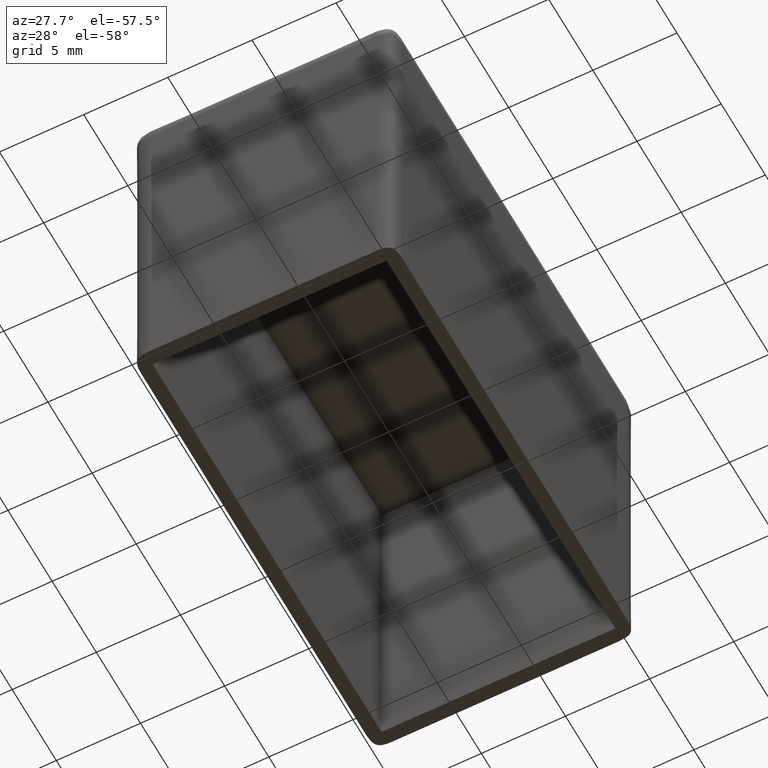
[diagram: clean part render]
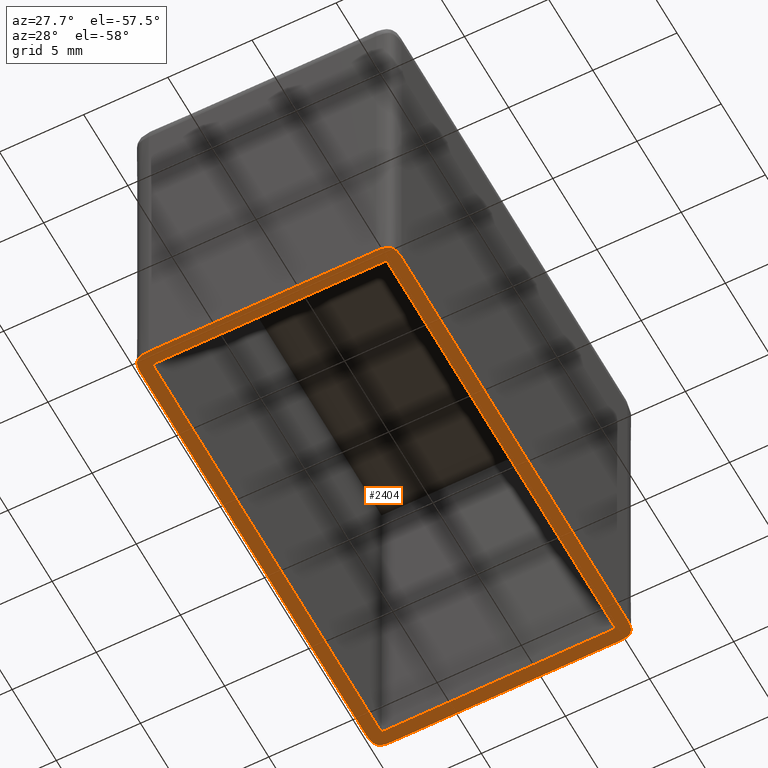
[diagram: same view with one face highlighted and labeled with its STEP entity id]
A machine part, auxiliary view. The second image highlights one B-rep face of the part: STEP entity #2404.
In plain terms, the highlighted planar face has unit normal (0, 0, 1).
Its self-contained STEP definition (entity closure, byte-faithful):
#5 = CARTESIAN_POINT ( 'NONE',  ( 0.0000000000000000000, 0.0000000000000000000, -22.00000000000000000 ) ) ;
#7 = CARTESIAN_POINT ( 'NONE',  ( 0.9978666655837860100, 0.8000000000000000400, -22.00000000000000000 ) ) ;
#10 = VERTEX_POINT ( 'NONE', #218 ) ;
#12 = CARTESIAN_POINT ( 'NONE',  ( 14.92796773473571800, 0.03392328364386529300, -22.00000000000000000 ) ) ;
#14 = CARTESIAN_POINT ( 'NONE',  ( 14.49999999999999800, 27.49999999999999600, -22.00000000000000000 ) ) ;
#34 = CARTESIAN_POINT ( 'NONE',  ( 14.68321624838080600, 0.8068364525453568500, -22.00000000000000400 ) ) ;
#37 = VECTOR ( 'NONE', #618, 1000.000000000000000 ) ;
#46 = CARTESIAN_POINT ( 'NONE',  ( 14.58261939557887000, 27.49999999999999600, -22.00000000000000000 ) ) ;
#53 = EDGE_CURVE ( 'NONE', #734, #641, #395, .T. ) ;
#58 = CARTESIAN_POINT ( 'NONE',  ( 14.53199972902769900, 26.69983370027172500, -22.00000000000000400 ) ) ;
#79 = CARTESIAN_POINT ( 'NONE',  ( 0.8200998324182342500, 26.69344524766039200, -22.00000000000000400 ) ) ;
#89 = CARTESIAN_POINT ( 'NONE',  ( 14.92195990358890600, 0.03275341870660460800, -21.99999999999999600 ) ) ;
#90 = CARTESIAN_POINT ( 'NONE',  ( 15.47690747893944700, 0.6338777684587885200, -22.00000000000000700 ) ) ;
#98 = CARTESIAN_POINT ( 'NONE',  ( 0.9532962902844740500, 26.70000000000000300, -22.00000000000000000 ) ) ;
#99 = CARTESIAN_POINT ( 'NONE',  ( 15.09044807097110300, 0.07888791023231928000, -22.00000000000000400 ) ) ;
#106 = CARTESIAN_POINT ( 'NONE',  ( 15.04389050095700300, 0.06210524771872363200, -21.99999999999999600 ) ) ;
#111 = CARTESIAN_POINT ( 'NONE',  ( 0.3228816495558670700, 27.38037113580408600, -22.00000000000000000 ) ) ;
#117 = ORIENTED_EDGE ( 'NONE', *, *, #1258, .T. ) ;
#128 = CARTESIAN_POINT ( 'NONE',  ( 15.42113883093678700, 0.4115075020712722900, -22.00000000000000400 ) ) ;
#132 = CARTESIAN_POINT ( 'NONE',  ( 14.69999999999999900, 0.0000000000000000000, -22.00000000000000000 ) ) ;
#144 = CARTESIAN_POINT ( 'NONE',  ( 0.03088814680305572800, 26.91208960525878200, -21.99999999999999600 ) ) ;
#152 = CARTESIAN_POINT ( 'NONE',  ( 0.0000000000000000000, 1.000000000000000000, -22.00000000000000000 ) ) ;
#154 = EDGE_CURVE ( 'NONE', #1839, #1776, #1375, .T. ) ;
#155 = CARTESIAN_POINT ( 'NONE',  ( 0.07018473020474483300, 27.06542827164653500, -22.00000000000000700 ) ) ;
#164 = CARTESIAN_POINT ( 'NONE',  ( 0.8000758437605984800, 26.52346679910117900, -22.00000000000000400 ) ) ;
#165 = CARTESIAN_POINT ( 'NONE',  ( 0.5626215147192922300, 27.46417721376826300, -22.00000000000000400 ) ) ;
#169 = B_SPLINE_CURVE_WITH_KNOTS ( 'NONE', 3,
 ( #1497, #370, #2889, #2109, #2099, #2330, #79, #329, #2085, #583, #2583, #98, #3119 ),
 .UNSPECIFIED., .F., .F.,
 ( 4, 3, 3, 3, 4 ),
 ( 0.0000000000000000000, 2.496001232767899500E-006, 1.248007464211747100E-005, 5.242302430365668500E-005, 0.0001926087091526860200 ),
 .UNSPECIFIED. ) ;
#191 = CARTESIAN_POINT ( 'NONE',  ( 0.5879103947412422900, 0.03088814680305683100, -21.99999999999999600 ) ) ;
#203 = CARTESIAN_POINT ( 'NONE',  ( 0.3132717579864004500, 0.1206740327154293700, -22.00000000000000000 ) ) ;
#207 = CARTESIAN_POINT ( 'NONE',  ( 0.8000000000000009300, 26.50213333441621400, -22.00000000000000000 ) ) ;
#210 = B_SPLINE_CURVE_WITH_KNOTS ( 'NONE', 3,
 ( #2453, #1261, #1982, #2001, #2716, #737, #2468, #2738, #1217, #466, #1501, #2479, #1762 ),
 .UNSPECIFIED., .F., .F.,
 ( 4, 3, 3, 3, 4 ),
 ( 0.0000000000000000000, 2.496001232752912500E-006, 1.248007464209986000E-005, 5.242302430364379700E-005, 0.0001926087091526914900 ),
 .UNSPECIFIED. ) ;
#211 = CARTESIAN_POINT ( 'NONE',  ( 0.1196288641961170000, 0.3228816495553220000, -22.00000000000000000 ) ) ;
#218 = CARTESIAN_POINT ( 'NONE',  ( 15.50000000000000000, 1.000000000000000000, -22.00000000000000000 ) ) ;
#226 = CARTESIAN_POINT ( 'NONE',  ( 0.8044614573706798700, 26.65371376655579600, -22.00000000000000400 ) ) ;
#231 = VERTEX_POINT ( 'NONE', #1037 ) ;
#234 = CARTESIAN_POINT ( 'NONE',  ( 0.03392328364385362900, 0.5720322652643055100, -22.00000000000000400 ) ) ;
#259 = CARTESIAN_POINT ( 'NONE',  ( 14.90978191810938500, 27.46953070137842400, -22.00000000000000400 ) ) ;
#284 = CARTESIAN_POINT ( 'NONE',  ( 0.9680002709722899100, 0.8001662997282817900, -21.99999999999998900 ) ) ;
#285 = CARTESIAN_POINT ( 'NONE',  ( 14.81252021576082500, 27.48443944817423900, -22.00000000000000000 ) ) ;
#292 = CARTESIAN_POINT ( 'NONE',  ( 15.50000000000000000, 26.50000000000000000, -22.00000000000000000 ) ) ;
#297 = CARTESIAN_POINT ( 'NONE',  ( 15.39287949657317300, 27.15276182586277200, -22.00000000000000000 ) ) ;
#307 = CARTESIAN_POINT ( 'NONE',  ( 15.42111208976810500, 27.09044807097000900, -21.99999999999999600 ) ) ;
#329 = CARTESIAN_POINT ( 'NONE',  ( 0.8333652586811877100, 26.69457214218863000, -22.00000000000000400 ) ) ;
#337 = CARTESIAN_POINT ( 'NONE',  ( 14.49999999999999800, 26.69999999999999900, -22.00000000000000000 ) ) ;
#338 = CARTESIAN_POINT ( 'NONE',  ( 14.80594846349609000, 0.01069499386338116200, -22.00000000000000400 ) ) ;
#339 = CARTESIAN_POINT ( 'NONE',  ( 15.47270695763541500, 0.6081550272228167800, -22.00000000000000000 ) ) ;
#350 = CARTESIAN_POINT ( 'NONE',  ( 14.69233031693694400, 0.8076696830621207200, -22.00000000000000000 ) ) ;
#353 = ORIENTED_EDGE ( 'NONE', *, *, #941, .F. ) ;
#370 = CARTESIAN_POINT ( 'NONE',  ( 0.8084979862949431800, 26.69240866513404600, -22.00000000000000000 ) ) ;
#395 = LINE ( 'NONE', #1924, #754 ) ;
#411 = DIRECTION ( 'NONE',  ( -1.000000000000000000, -0.0000000000000000000, 0.0000000000000000000 ) ) ;
#413 = CARTESIAN_POINT ( 'NONE',  ( 0.01556055182575118500, 26.81252021576027300, -22.00000000000000000 ) ) ;
#432 = CARTESIAN_POINT ( 'NONE',  ( 14.50000000000000000, 0.0000000000000000000, -22.00000000000000000 ) ) ;
#451 = CARTESIAN_POINT ( 'NONE',  ( 0.4115075020711437800, 0.07886116906323573100, -21.99999999999999300 ) ) ;
#453 = EDGE_CURVE ( 'NONE', #1839, #561, #705, .T. ) ;
#466 = CARTESIAN_POINT ( 'NONE',  ( 0.8037097831999540100, 0.8599379922343322000, -22.00000000000000400 ) ) ;
#501 = CARTESIAN_POINT ( 'NONE',  ( 15.31610458665546500, 27.26978804501091600, -21.99999999999999600 ) ) ;
#502 = CARTESIAN_POINT ( 'NONE',  ( 0.8033834997290828500, 26.63437137765168600, -22.00000000000000400 ) ) ;
#507 = CARTESIAN_POINT ( 'NONE',  ( 0.04595270468731096900, 0.5167310761294881000, -22.00000000000000400 ) ) ;
#508 = CARTESIAN_POINT ( 'NONE',  ( 0.9936000000000007000, 0.8000064484616606900, -22.00000000000000000 ) ) ;
#509 = CARTESIAN_POINT ( 'NONE',  ( 14.95492298412082600, 27.46105588128689900, -22.00000000000000400 ) ) ;
#510 = DIRECTION ( 'NONE',  ( -1.000000000000000000, 0.0000000000000000000, 0.0000000000000000000 ) ) ;
#521 = CARTESIAN_POINT ( 'NONE',  ( 14.69669005096009900, 27.49602709315086800, -22.00000000000000400 ) ) ;
#531 = CARTESIAN_POINT ( 'NONE',  ( 0.03275341870660548900, 0.5780400964110785600, -22.00000000000000000 ) ) ;
#533 = CARTESIAN_POINT ( 'NONE',  ( 14.90263794759535000, 27.47081361921513200, -22.00000000000000400 ) ) ;
#548 = CARTESIAN_POINT ( 'NONE',  ( 14.69999999999999900, 26.54670370971552600, -22.00000000000000000 ) ) ;
#555 = ORIENTED_EDGE ( 'NONE', *, *, #2275, .F. ) ;
#557 = VERTEX_POINT ( 'NONE', #1597 ) ;
#559 = CARTESIAN_POINT ( 'NONE',  ( 14.69344524766039200, 26.67990016758177100, -21.99999999999999600 ) ) ;
#561 = VERTEX_POINT ( 'NONE', #2250 ) ;
#565 = CARTESIAN_POINT ( 'NONE',  ( 15.50000000000000200, 26.66646699502459600, -22.00000000000000000 ) ) ;
#570 = CARTESIAN_POINT ( 'NONE',  ( 14.69248618510875400, 26.69067363173007100, -21.99999999999999600 ) ) ;
#582 = CARTESIAN_POINT ( 'NONE',  ( 14.50426666994823100, 26.69999786681569300, -22.00000000000000000 ) ) ;
#583 = CARTESIAN_POINT ( 'NONE',  ( 0.8599379922343587400, 26.69629021680003700, -22.00000000000000000 ) ) ;
#584 = CARTESIAN_POINT ( 'NONE',  ( 15.50000000000000000, 1.000000000000000000, -22.00000000000000000 ) ) ;
#588 = CARTESIAN_POINT ( 'NONE',  ( 14.69992415623940300, 0.9765332008988165700, -22.00000000000000400 ) ) ;
#593 = CARTESIAN_POINT ( 'NONE',  ( 14.51493339190839800, 26.69997629028389200, -22.00000000000000000 ) ) ;
#596 = DIRECTION ( 'NONE',  ( 0.0000000000000000000, 0.0000000000000000000, 1.000000000000000000 ) ) ;
#598 = ORIENTED_EDGE ( 'NONE', *, *, #1487, .T. ) ;
#605 = CARTESIAN_POINT ( 'NONE',  ( 15.47081361921513200, 0.5973620524048506300, -22.00000000000000400 ) ) ;
#618 = DIRECTION ( 'NONE',  ( -1.000000000000000000, -0.0000000000000000000, -0.0000000000000000000 ) ) ;
#625 = CARTESIAN_POINT ( 'NONE',  ( 0.1595663668651665400, 27.24513874641767300, -22.00000000000000000 ) ) ;
#636 = CARTESIAN_POINT ( 'NONE',  ( 0.08481498937501544300, 27.10358704059751000, -21.99999999999999600 ) ) ;
#637 = CARTESIAN_POINT ( 'NONE',  ( 14.69851622640757300, 0.8997164569056708100, -22.00000000000000400 ) ) ;
#641 = VERTEX_POINT ( 'NONE', #1772 ) ;
#652 = EDGE_CURVE ( 'NONE', #557, #3250, #210, .T. ) ;
#674 = VECTOR ( 'NONE', #3154, 1000.000000000000000 ) ;
#686 = B_SPLINE_CURVE_WITH_KNOTS ( 'NONE', 3,
 ( #2528, #7, #2765, #508, #1012, #1288, #284, #796, #2264, #1267, #2539, #2742, #3002 ),
 .UNSPECIFIED., .F., .F.,
 ( 4, 3, 3, 3, 4 ),
 ( 0.0000000000000000000, 6.400003248644470600E-006, 3.200023134762170200E-005, 0.0001344436423021510100, 0.0001925653611397155800 ),
 .UNSPECIFIED. ) ;
#705 = B_SPLINE_CURVE_WITH_KNOTS ( 'NONE', 3,
 ( #1128, #2342, #1091, #3104, #1079, #588, #1882, #1115, #637, #2366, #3140, #1584, #350 ),
 .UNSPECIFIED., .F., .F.,
 ( 4, 3, 3, 3, 4 ),
 ( 0.0000000000000000000, 6.400003248652057500E-006, 3.200023134763015900E-005, 0.0001344436423021596300, 0.0001925653611397135500 ),
 .UNSPECIFIED. ) ;
#709 = FACE_BOUND ( 'NONE', #1336, .T. ) ;
#714 = CARTESIAN_POINT ( 'NONE',  ( 14.50000000000000000, 0.8000000000000000400, -22.00000000000000000 ) ) ;
#719 = CARTESIAN_POINT ( 'NONE',  ( 0.5973620524048703900, 0.02918638078487041700, -22.00000000000000700 ) ) ;
#734 = VERTEX_POINT ( 'NONE', #714 ) ;
#737 = CARTESIAN_POINT ( 'NONE',  ( 0.8068364525453575200, 0.8167837516191953600, -21.99999999999999300 ) ) ;
#751 = CARTESIAN_POINT ( 'NONE',  ( 3.896351557369774800E-017, 0.8335330049725175900, -22.00000000000000400 ) ) ;
#754 = VECTOR ( 'NONE', #411, 1000.000000000000000 ) ;
#756 = CARTESIAN_POINT ( 'NONE',  ( 15.10358704059814300, 27.41518501062484600, -21.99999999999999300 ) ) ;
#774 = CARTESIAN_POINT ( 'NONE',  ( 0.06210524771863992800, 0.4561094990431390800, -22.00000000000000000 ) ) ;
#775 = CARTESIAN_POINT ( 'NONE',  ( 14.69067363173008400, 0.8075138148912469600, -21.99999999999999600 ) ) ;
#796 = CARTESIAN_POINT ( 'NONE',  ( 0.9338614594334964100, 0.8005281987781881500, -21.99999999999998900 ) ) ;
#811 = CARTESIAN_POINT ( 'NONE',  ( 14.69629021680004400, 26.64006200776562800, -21.99999999999998900 ) ) ;
#816 = CARTESIAN_POINT ( 'NONE',  ( 15.48930500613661600, 26.80594846349268000, -21.99999999999999600 ) ) ;
#837 = CARTESIAN_POINT ( 'NONE',  ( 14.69233031693787900, 26.69233031693693500, -21.99999999999999600 ) ) ;
#839 = CARTESIAN_POINT ( 'NONE',  ( 15.49999999999999500, 0.9173806044219662300, -22.00000000000000000 ) ) ;
#847 = CARTESIAN_POINT ( 'NONE',  ( 15.23034517245537600, 0.1516328620193898300, -22.00000000000000000 ) ) ;
#884 = CARTESIAN_POINT ( 'NONE',  ( 0.4095519290277777600, 27.42111208976723400, -22.00000000000000400 ) ) ;
#896 = CARTESIAN_POINT ( 'NONE',  ( -1.750246651214226700E-019, 26.58261939557845100, -22.00000000000000000 ) ) ;
#901 = B_SPLINE_CURVE_WITH_KNOTS ( 'NONE', 3,
 ( #584, #839, #2584, #2862, #90, #339, #605, #1637, #2877, #1374, #2100, #2634, #128, #1134, #3120, #1855, #1388, #1088, #847, #1612, #2596, #1600, #1901, #99, #106, #1866, #1875, #975, #12, #89, #338, #1682, #432 ),
 .UNSPECIFIED., .F., .F.,
 ( 4, 1, 1, 1, 1, 2, 2, 1, 1, 2, 2, 2, 1, 1, 2, 2, 1, 1, 1, 2, 2, 4 ),
 ( 0.0000000000000000000, 0.1249999999999922600, 0.1874999999999883100, 0.2187499999999862300, 0.2343749999999851800, 0.2421874999999846500, 0.2499999999999841500, 0.3124999999999765200, 0.3437499999999726300, 0.3593749999999702500, 0.3749999999999678600, 0.4999999999999460400, 0.5624999999999339400, 0.5937499999999279500, 0.6093749999999249500, 0.6249999999999219500, 0.6874999999999194000, 0.7187499999999197300, 0.7343749999999198400, 0.7421874999999199500, 0.7499999999999200600, 1.000000000000000000 ),
 .UNSPECIFIED. ) ;
#904 = LINE ( 'NONE', #3006, #2823 ) ;
#907 = CARTESIAN_POINT ( 'NONE',  ( 0.08731673486847657500, 27.10970053710921600, -21.99999999999999600 ) ) ;
#919 = CARTESIAN_POINT ( 'NONE',  ( 0.4561094990410309300, 27.43789475228047400, -22.00000000000000400 ) ) ;
#920 = EDGE_CURVE ( 'NONE', #3158, #2282, #2669, .T. ) ;
#941 = EDGE_CURVE ( 'NONE', #10, #2273, #1972, .T. ) ;
#971 = CARTESIAN_POINT ( 'NONE',  ( 0.8000064484616614700, 26.50639999999999900, -22.00000000000000000 ) ) ;
#975 = CARTESIAN_POINT ( 'NONE',  ( 14.93737848528019900, 0.03582278623153691700, -22.00000000000000700 ) ) ;
#993 = CARTESIAN_POINT ( 'NONE',  ( 14.69233031693787900, 26.69233031693693500, -21.99999999999999600 ) ) ;
#998 = CARTESIAN_POINT ( 'NONE',  ( 0.09904996031321473800, 0.3638191970670486800, -22.00000000000000700 ) ) ;
#1004 = CARTESIAN_POINT ( 'NONE',  ( 15.40095003968670200, 27.13618080293320700, -22.00000000000000000 ) ) ;
#1008 = ORIENTED_EDGE ( 'NONE', *, *, #2379, .T. ) ;
#1012 = CARTESIAN_POINT ( 'NONE',  ( 0.9850666080915980700, 0.8000237097161091400, -22.00000000000000000 ) ) ;
#1013 = CARTESIAN_POINT ( 'NONE',  ( 14.54670370971553900, 0.8000000000000000400, -22.00000000000000000 ) ) ;
#1021 = VERTEX_POINT ( 'NONE', #2462 ) ;
#1037 = CARTESIAN_POINT ( 'NONE',  ( 0.8076696830630657500, 26.69233031693788000, -22.00000000000000000 ) ) ;
#1039 = EDGE_LOOP ( 'NONE', ( #1008, #1611, #117, #1917, #2489, #598, #353, #2396 ) ) ;
#1040 = CARTESIAN_POINT ( 'NONE',  ( 0.1071205034266845300, 0.3472381741376975900, -22.00000000000000400 ) ) ;
#1045 = CARTESIAN_POINT ( 'NONE',  ( 15.34836713798030600, 27.23034517245629300, -22.00000000000000000 ) ) ;
#1063 = CARTESIAN_POINT ( 'NONE',  ( 15.50000000000000000, 26.50000000000000000, -22.00000000000000000 ) ) ;
#1079 = CARTESIAN_POINT ( 'NONE',  ( 14.69997629028389200, 0.9850666080915871900, -22.00000000000000400 ) ) ;
#1088 = CARTESIAN_POINT ( 'NONE',  ( 15.26978804501038700, 0.1838954133443707600, -22.00000000000000000 ) ) ;
#1091 = CARTESIAN_POINT ( 'NONE',  ( 14.69999786681569300, 0.9957333300517634500, -22.00000000000000400 ) ) ;
#1097 = B_SPLINE_CURVE_WITH_KNOTS ( 'NONE', 3,
 ( #14, #46, #521, #285, #1289, #1777, #533, #259, #2265, #509, #3054, #2507, #1537, #756, #2529, #3042, #2289, #501, #1045, #1812, #297, #1004, #2564, #307, #1314, #3066, #2066, #2308, #1824, #2554, #816, #565, #1063 ),
 .UNSPECIFIED., .F., .F.,
 ( 4, 1, 1, 1, 1, 2, 2, 1, 1, 2, 2, 2, 1, 1, 2, 2, 1, 1, 1, 2, 2, 4 ),
 ( 0.0000000000000000000, 0.1249999999999733500, 0.1874999999999600300, 0.2187499999999516800, 0.2343749999999462700, 0.2421874999999435700, 0.2499999999999408800, 0.3124999999999343900, 0.3437499999999320500, 0.3593749999999282200, 0.3749999999999243900, 0.4999999999999260600, 0.5624999999999302800, 0.5937499999999323900, 0.6093749999999368300, 0.6249999999999412700, 0.6874999999999744600, 0.7187499999999940000, 0.7343750000000034400, 0.7421875000000078800, 0.7500000000000123200, 1.000000000000000000 ),
 .UNSPECIFIED. ) ;
#1114 = CARTESIAN_POINT ( 'NONE',  ( 0.0000000000000000000, 26.49999999999999600, -22.00000000000000000 ) ) ;
#1115 = CARTESIAN_POINT ( 'NONE',  ( 14.69947180122181200, 0.9338614594334848600, -22.00000000000000400 ) ) ;
#1128 = CARTESIAN_POINT ( 'NONE',  ( 14.69999999999999900, 1.000000000000000000, -22.00000000000000000 ) ) ;
#1134 = CARTESIAN_POINT ( 'NONE',  ( 15.41518501062500900, 0.3964129594024467000, -22.00000000000000400 ) ) ;
#1139 = VECTOR ( 'NONE', #2211, 1000.000000000000000 ) ;
#1164 = ORIENTED_EDGE ( 'NONE', *, *, #1604, .F. ) ;
#1173 = CARTESIAN_POINT ( 'NONE',  ( 0.5780400964112157900, 27.46724658129339900, -22.00000000000000000 ) ) ;
#1183 = CARTESIAN_POINT ( 'NONE',  ( 1.000000000000000900, 27.49999999999999600, -22.00000000000000000 ) ) ;
#1184 = VERTEX_POINT ( 'NONE', #1630 ) ;
#1208 = B_SPLINE_CURVE_WITH_KNOTS ( 'NONE', 3,
 ( #3247, #2970, #3217, #2739, #1706, #2959, #719, #2979, #191, #1463, #1741, #1715, #451, #2711, #1963, #203, #1973, #3236, #1726, #211, #1040, #998, #2784, #2527, #774, #507, #2754, #2274, #234, #531, #2003, #751, #2026 ),
 .UNSPECIFIED., .F., .F.,
 ( 4, 1, 1, 1, 1, 2, 2, 1, 1, 2, 2, 2, 1, 1, 2, 2, 1, 1, 1, 2, 2, 4 ),
 ( 0.0000000000000000000, 0.1249999999999967200, 0.1874999999999950900, 0.2187499999999943700, 0.2343749999999941400, 0.2421874999999941200, 0.2499999999999941200, 0.3124999999999943400, 0.3437499999999945000, 0.3593749999999945600, 0.3749999999999946700, 0.4999999999999956700, 0.5624999999999961100, 0.5937499999999964500, 0.6093749999999965600, 0.6249999999999966700, 0.6874999999999971100, 0.7187499999999973400, 0.7343749999999975600, 0.7421874999999976700, 0.7499999999999976700, 1.000000000000000000 ),
 .UNSPECIFIED. ) ;
#1215 = CARTESIAN_POINT ( 'NONE',  ( 0.8000000000000000400, 26.49999999999999600, -22.00000000000000000 ) ) ;
#1217 = CARTESIAN_POINT ( 'NONE',  ( 0.8044933777376707100, 0.8466478679002212800, -22.00000000000000400 ) ) ;
#1235 = EDGE_CURVE ( 'NONE', #1021, #2282, #1541, .T. ) ;
#1258 = EDGE_CURVE ( 'NONE', #2526, #1021, #1259, .T. ) ;
#1259 = LINE ( 'NONE', #5, #2544 ) ;
#1261 = CARTESIAN_POINT ( 'NONE',  ( 0.8075913348659472500, 0.8084979862949245300, -22.00000000000000000 ) ) ;
#1265 = ORIENTED_EDGE ( 'NONE', *, *, #2918, .F. ) ;
#1267 = CARTESIAN_POINT ( 'NONE',  ( 0.8656286223483320400, 0.8033834997290810700, -22.00000000000000700 ) ) ;
#1276 = CARTESIAN_POINT ( 'NONE',  ( 14.65335213209978000, 0.8044933777376698200, -22.00000000000000000 ) ) ;
#1288 = CARTESIAN_POINT ( 'NONE',  ( 0.9765332008988277800, 0.8000758437605974800, -21.99999999999998900 ) ) ;
#1289 = CARTESIAN_POINT ( 'NONE',  ( 14.86612223154184800, 27.47690747893943800, -22.00000000000000000 ) ) ;
#1297 = CARTESIAN_POINT ( 'NONE',  ( 14.67304399944121100, 26.69415458627369700, -21.99999999999998600 ) ) ;
#1313 = CARTESIAN_POINT ( 'NONE',  ( 14.50640000000000100, 26.69999355153833800, -22.00000000000000000 ) ) ;
#1314 = CARTESIAN_POINT ( 'NONE',  ( 15.43789475228202300, 27.04389050095510400, -22.00000000000000000 ) ) ;
#1318 = CARTESIAN_POINT ( 'NONE',  ( 14.69286972038574200, 26.68653132467972000, -21.99999999999999600 ) ) ;
#1336 = EDGE_LOOP ( 'NONE', ( #1531, #1551, #2913, #1616, #555, #1265, #2954, #2050, #1164, #3163, #2511, #3001 ) ) ;
#1340 = CARTESIAN_POINT ( 'NONE',  ( 14.50213333441621800, 26.69999999999999900, -22.00000000000000000 ) ) ;
#1368 = CARTESIAN_POINT ( 'NONE',  ( 0.1206740327153148400, 27.18672824201399200, -22.00000000000000000 ) ) ;
#1374 = CARTESIAN_POINT ( 'NONE',  ( 15.46105588128725800, 0.5450770158804376700, -22.00000000000000400 ) ) ;
#1375 = LINE ( 'NONE', #132, #674 ) ;
#1388 = CARTESIAN_POINT ( 'NONE',  ( 15.34043363313395100, 0.2548612535819922400, -22.00000000000000000 ) ) ;
#1402 = CARTESIAN_POINT ( 'NONE',  ( 0.003972906849128501000, 26.69669005095935800, -22.00000000000000000 ) ) ;
#1436 = CARTESIAN_POINT ( 'NONE',  ( 0.5167310761279088100, 27.45404729531202300, -22.00000000000000000 ) ) ;
#1463 = CARTESIAN_POINT ( 'NONE',  ( 0.5450770158802871200, 0.03894411871276509000, -22.00000000000000000 ) ) ;
#1465 = EDGE_CURVE ( 'NONE', #561, #734, #2751, .T. ) ;
#1487 = EDGE_CURVE ( 'NONE', #3158, #2273, #1097, .T. ) ;
#1494 = CARTESIAN_POINT ( 'NONE',  ( 14.50000000000000000, 0.0000000000000000000, -22.00000000000000000 ) ) ;
#1497 = CARTESIAN_POINT ( 'NONE',  ( 0.8076696830630657500, 26.69233031693788000, -22.00000000000000000 ) ) ;
#1501 = CARTESIAN_POINT ( 'NONE',  ( 0.8009608754766202000, 0.9065607335471508300, -22.00000000000000400 ) ) ;
#1507 = CARTESIAN_POINT ( 'NONE',  ( 14.68984517486579300, 0.8074371082567424200, -21.99999999999999600 ) ) ;
#1531 = ORIENTED_EDGE ( 'NONE', *, *, #53, .F. ) ;
#1537 = CARTESIAN_POINT ( 'NONE',  ( 15.08849249792979700, 27.42113883093648100, -22.00000000000000000 ) ) ;
#1541 = B_SPLINE_CURVE_WITH_KNOTS ( 'NONE', 3,
 ( #1114, #896, #1402, #413, #1651, #3138, #1664, #3126, #144, #1916, #2159, #155, #2611, #636, #907, #1368, #625, #1618, #2881, #111, #1881, #1892, #2376, #884, #919, #1436, #2672, #165, #1937, #1173, #2930, #3202, #1183 ),
 .UNSPECIFIED., .F., .F.,
 ( 4, 1, 1, 1, 1, 2, 2, 1, 1, 2, 2, 2, 1, 1, 2, 2, 1, 1, 1, 2, 2, 4 ),
 ( 0.0000000000000000000, 0.1250000000000335300, 0.1875000000000534000, 0.2187500000000667200, 0.2343750000000733900, 0.2421875000000731100, 0.2500000000000727800, 0.3125000000000648900, 0.3437500000000638900, 0.3593750000000633900, 0.3750000000000629500, 0.5000000000000377500, 0.5625000000000274200, 0.5937500000000239800, 0.6093750000000237600, 0.6250000000000235400, 0.6875000000000279800, 0.7187500000000293100, 0.7343750000000299800, 0.7421875000000298600, 0.7500000000000297500, 1.000000000000000000 ),
 .UNSPECIFIED. ) ;
#1549 = CARTESIAN_POINT ( 'NONE',  ( 14.64006200776566900, 0.8037097831999530100, -22.00000000000000000 ) ) ;
#1551 = ORIENTED_EDGE ( 'NONE', *, *, #1465, .F. ) ;
#1558 = CARTESIAN_POINT ( 'NONE',  ( 14.56613854056649000, 26.69947180122181900, -22.00000000000000400 ) ) ;
#1569 = LINE ( 'NONE', #2029, #2503 ) ;
#1580 = CARTESIAN_POINT ( 'NONE',  ( 14.52346679910116700, 26.69992415623941200, -22.00000000000000400 ) ) ;
#1584 = CARTESIAN_POINT ( 'NONE',  ( 14.69415458627369700, 0.8269560005587833800, -21.99999999999999600 ) ) ;
#1585 = CARTESIAN_POINT ( 'NONE',  ( 14.69903912452337700, 26.59343926645282300, -21.99999999999998900 ) ) ;
#1596 = CARTESIAN_POINT ( 'NONE',  ( 14.69233031693787900, 26.69233031693693500, -21.99999999999999600 ) ) ;
#1597 = CARTESIAN_POINT ( 'NONE',  ( 0.8076696830621221700, 0.8076696830630566400, -22.00000000000000000 ) ) ;
#1600 = CARTESIAN_POINT ( 'NONE',  ( 15.13618080293296100, 0.09904996031321441900, -22.00000000000000000 ) ) ;
#1604 = EDGE_CURVE ( 'NONE', #1827, #231, #3207, .T. ) ;
#1611 = ORIENTED_EDGE ( 'NONE', *, *, #2095, .T. ) ;
#1612 = CARTESIAN_POINT ( 'NONE',  ( 15.17711835044471000, 0.1196288641961147000, -22.00000000000000000 ) ) ;
#1616 = ORIENTED_EDGE ( 'NONE', *, *, #154, .T. ) ;
#1618 = CARTESIAN_POINT ( 'NONE',  ( 0.2302119549900533400, 27.31610458665577600, -22.00000000000000400 ) ) ;
#1630 = CARTESIAN_POINT ( 'NONE',  ( 14.49999999999999800, 26.69999999999999900, -22.00000000000000000 ) ) ;
#1637 = CARTESIAN_POINT ( 'NONE',  ( 15.46953070137842800, 0.5902180818907190000, -21.99999999999999600 ) ) ;
#1651 = CARTESIAN_POINT ( 'NONE',  ( 0.02309252106055762300, 26.86612223154152100, -22.00000000000000000 ) ) ;
#1654 = EDGE_CURVE ( 'NONE', #3250, #1827, #1569, .T. ) ;
#1664 = CARTESIAN_POINT ( 'NONE',  ( 0.02918638078487097200, 26.90263794759523800, -22.00000000000000000 ) ) ;
#1682 = CARTESIAN_POINT ( 'NONE',  ( 14.66646699502799900, -1.792886405022180600E-017, -22.00000000000000400 ) ) ;
#1706 = CARTESIAN_POINT ( 'NONE',  ( 0.6338777684588511300, 0.02309252106055680400, -21.99999999999999600 ) ) ;
#1715 = CARTESIAN_POINT ( 'NONE',  ( 0.4345717283531665400, 0.07018473020471735500, -22.00000000000000400 ) ) ;
#1721 = EDGE_CURVE ( 'NONE', #1184, #2863, #904, .T. ) ;
#1726 = CARTESIAN_POINT ( 'NONE',  ( 0.1516328620193955200, 0.2696548275446705700, -22.00000000000000000 ) ) ;
#1728 = FACE_OUTER_BOUND ( 'NONE', #1039, .T. ) ;
#1741 = CARTESIAN_POINT ( 'NONE',  ( 0.4913451422966219100, 0.05171974746543018400, -22.00000000000000400 ) ) ;
#1748 = VERTEX_POINT ( 'NONE', #993 ) ;
#1762 = CARTESIAN_POINT ( 'NONE',  ( 0.8000000000000000400, 1.000000000000000000, -22.00000000000000000 ) ) ;
#1765 = DIRECTION ( 'NONE',  ( 0.0000000000000000000, 1.000000000000000000, 0.0000000000000000000 ) ) ;
#1772 = CARTESIAN_POINT ( 'NONE',  ( 1.000000000000000900, 0.8000000000000000400, -22.00000000000000000 ) ) ;
#1776 = VERTEX_POINT ( 'NONE', #1886 ) ;
#1777 = CARTESIAN_POINT ( 'NONE',  ( 14.89184497277752000, 27.47270695763541300, -22.00000000000000000 ) ) ;
#1807 = EDGE_CURVE ( 'NONE', #231, #2863, #169, .T. ) ;
#1808 = CARTESIAN_POINT ( 'NONE',  ( 14.69457214218862800, 26.66663474131880900, -21.99999999999999600 ) ) ;
#1812 = CARTESIAN_POINT ( 'NONE',  ( 15.38037113580366000, 27.17711835044539400, -22.00000000000000000 ) ) ;
#1823 = CARTESIAN_POINT ( 'NONE',  ( 14.60028354309430100, 26.69851622640758400, -22.00000000000001100 ) ) ;
#1824 = CARTESIAN_POINT ( 'NONE',  ( 15.46607671635624100, 26.92796773473543900, -22.00000000000000000 ) ) ;
#1827 = VERTEX_POINT ( 'NONE', #1864 ) ;
#1839 = VERTEX_POINT ( 'NONE', #2421 ) ;
#1855 = CARTESIAN_POINT ( 'NONE',  ( 15.37932596728482300, 0.3132717579867096400, -21.99999999999999600 ) ) ;
#1861 = CARTESIAN_POINT ( 'NONE',  ( 1.000000000000000900, 0.0000000000000000000, -22.00000000000000000 ) ) ;
#1864 = CARTESIAN_POINT ( 'NONE',  ( 0.8000000000000000400, 26.49999999999999600, -22.00000000000000000 ) ) ;
#1866 = CARTESIAN_POINT ( 'NONE',  ( 14.98326892387062500, 0.04595270468737418900, -22.00000000000000000 ) ) ;
#1875 = CARTESIAN_POINT ( 'NONE',  ( 14.95138203230994700, 0.03873324064699391900, -22.00000000000000000 ) ) ;
#1881 = CARTESIAN_POINT ( 'NONE',  ( 0.3472381741380472000, 27.39287949657345000, -22.00000000000000400 ) ) ;
#1882 = CARTESIAN_POINT ( 'NONE',  ( 14.69983370027171800, 0.9680002709722783600, -22.00000000000000400 ) ) ;
#1886 = CARTESIAN_POINT ( 'NONE',  ( 14.69999999999999900, 26.50000000000000000, -22.00000000000000000 ) ) ;
#1887 = DIRECTION ( 'NONE',  ( 1.000000000000000000, 0.0000000000000000000, -0.0000000000000000000 ) ) ;
#1892 = CARTESIAN_POINT ( 'NONE',  ( 0.3638191970672428100, 27.40095003968685100, -22.00000000000000700 ) ) ;
#1901 = CARTESIAN_POINT ( 'NONE',  ( 15.12624394499715300, 0.09450547656563833300, -22.00000000000000000 ) ) ;
#1916 = CARTESIAN_POINT ( 'NONE',  ( 0.03894411871278578900, 26.95492298411948100, -22.00000000000000700 ) ) ;
#1917 = ORIENTED_EDGE ( 'NONE', *, *, #1235, .T. ) ;
#1924 = CARTESIAN_POINT ( 'NONE',  ( 15.50000000000000000, 0.8000000000000000400, -22.00000000000000000 ) ) ;
#1937 = CARTESIAN_POINT ( 'NONE',  ( 0.5720322652640142900, 27.46607671635603900, -22.00000000000000700 ) ) ;
#1963 = CARTESIAN_POINT ( 'NONE',  ( 0.3902994628907366400, 0.08731673486845996400, -22.00000000000000700 ) ) ;
#1972 = LINE ( 'NONE', #2722, #3229 ) ;
#1973 = CARTESIAN_POINT ( 'NONE',  ( 0.2548612535819909700, 0.1595663668659978400, -22.00000000000000400 ) ) ;
#1982 = CARTESIAN_POINT ( 'NONE',  ( 0.8075138148912479600, 0.8093263682699173300, -21.99999999999999600 ) ) ;
#2001 = CARTESIAN_POINT ( 'NONE',  ( 0.8074371082567433100, 0.8101548251342078900, -21.99999999999999600 ) ) ;
#2003 = CARTESIAN_POINT ( 'NONE',  ( 0.01069499386338141100, 0.6940515365044263000, -21.99999999999999600 ) ) ;
#2018 = CARTESIAN_POINT ( 'NONE',  ( 0.8076696830630657500, 26.69233031693788000, -22.00000000000000000 ) ) ;
#2026 = CARTESIAN_POINT ( 'NONE',  ( 0.0000000000000000000, 1.000000000000000000, -22.00000000000000000 ) ) ;
#2028 = CARTESIAN_POINT ( 'NONE',  ( 14.69233031693694400, 0.8076696830621207200, -22.00000000000000000 ) ) ;
#2029 = CARTESIAN_POINT ( 'NONE',  ( 0.8000000000000000400, 0.0000000000000000000, -22.00000000000000000 ) ) ;
#2050 = ORIENTED_EDGE ( 'NONE', *, *, #1807, .F. ) ;
#2053 = CARTESIAN_POINT ( 'NONE',  ( 14.69550662226232700, 26.65335213209974100, -21.99999999999998900 ) ) ;
#2066 = CARTESIAN_POINT ( 'NONE',  ( 15.46126675935333200, 26.95138203230909800, -22.00000000000000000 ) ) ;
#2085 = CARTESIAN_POINT ( 'NONE',  ( 0.8466478679002494800, 26.69550662226232200, -22.00000000000000000 ) ) ;
#2087 = PLANE ( 'NONE',  #2618 ) ;
#2095 = EDGE_CURVE ( 'NONE', #2313, #2526, #1208, .T. ) ;
#2099 = CARTESIAN_POINT ( 'NONE',  ( 0.8134686753202929900, 26.69286972038573700, -21.99999999999999600 ) ) ;
#2100 = CARTESIAN_POINT ( 'NONE',  ( 15.44828025253460300, 0.4913451422968877500, -22.00000000000000400 ) ) ;
#2109 = CARTESIAN_POINT ( 'NONE',  ( 0.8101548251342362000, 26.69256289174325400, -21.99999999999999600 ) ) ;
#2159 = CARTESIAN_POINT ( 'NONE',  ( 0.05171974746546592600, 27.00865485770297200, -22.00000000000000400 ) ) ;
#2211 = DIRECTION ( 'NONE',  ( -1.000000000000000000, -0.0000000000000000000, -0.0000000000000000000 ) ) ;
#2228 = LINE ( 'NONE', #2806, #37 ) ;
#2246 = CARTESIAN_POINT ( 'NONE',  ( 14.67990016758179900, 0.8065547523396101600, -22.00000000000000400 ) ) ;
#2250 = CARTESIAN_POINT ( 'NONE',  ( 14.69233031693694400, 0.8076696830621207200, -22.00000000000000000 ) ) ;
#2255 = CARTESIAN_POINT ( 'NONE',  ( 0.8014837735924225100, 26.60028354309433100, -22.00000000000000400 ) ) ;
#2264 = CARTESIAN_POINT ( 'NONE',  ( 0.8997164569056821400, 0.8014837735924211800, -22.00000000000000700 ) ) ;
#2265 = CARTESIAN_POINT ( 'NONE',  ( 14.91208960525861800, 27.46911185319697100, -22.00000000000000000 ) ) ;
#2273 = VERTEX_POINT ( 'NONE', #292 ) ;
#2274 = CARTESIAN_POINT ( 'NONE',  ( 0.03582278623151474700, 0.5626215147198471200, -21.99999999999999600 ) ) ;
#2275 = EDGE_CURVE ( 'NONE', #1748, #1776, #3167, .T. ) ;
#2278 = CARTESIAN_POINT ( 'NONE',  ( 14.68653132467973800, 0.8071302796142606500, -21.99999999999999600 ) ) ;
#2282 = VERTEX_POINT ( 'NONE', #2296 ) ;
#2289 = CARTESIAN_POINT ( 'NONE',  ( 15.24513874641835200, 27.34043363313290700, -21.99999999999999300 ) ) ;
#2296 = CARTESIAN_POINT ( 'NONE',  ( 1.000000000000000900, 27.49999999999999600, -22.00000000000000000 ) ) ;
#2308 = CARTESIAN_POINT ( 'NONE',  ( 15.46417721376866100, 26.93737848527968400, -22.00000000000000000 ) ) ;
#2313 = VERTEX_POINT ( 'NONE', #1861 ) ;
#2315 = CARTESIAN_POINT ( 'NONE',  ( 14.69316354745464500, 26.68321624838078400, -21.99999999999999600 ) ) ;
#2330 = CARTESIAN_POINT ( 'NONE',  ( 0.8167837516192250100, 26.69316354745464500, -22.00000000000000400 ) ) ;
#2334 = B_SPLINE_CURVE_WITH_KNOTS ( 'NONE', 3,
 ( #337, #1340, #582, #1313, #593, #1580, #58, #1558, #1823, #2338, #2817, #1297, #837 ),
 .UNSPECIFIED., .F., .F.,
 ( 4, 3, 3, 3, 4 ),
 ( 0.0000000000000000000, 6.400003248641002000E-006, 3.200023134760603500E-005, 0.0001344436423021260000, 0.0001925653611397190200 ),
 .UNSPECIFIED. ) ;
#2338 = CARTESIAN_POINT ( 'NONE',  ( 14.63437137765164800, 26.69661650027092000, -22.00000000000001100 ) ) ;
#2341 = CARTESIAN_POINT ( 'NONE',  ( 14.49999999999999800, 27.49999999999999600, -22.00000000000000000 ) ) ;
#2342 = CARTESIAN_POINT ( 'NONE',  ( 14.69999999999999900, 0.9978666655837803400, -22.00000000000000000 ) ) ;
#2366 = CARTESIAN_POINT ( 'NONE',  ( 14.69661650027091300, 0.8656286223483207200, -22.00000000000000400 ) ) ;
#2376 = CARTESIAN_POINT ( 'NONE',  ( 0.3737560550031203700, 27.40549452343447400, -22.00000000000000000 ) ) ;
#2379 = EDGE_CURVE ( 'NONE', #2836, #2313, #2228, .T. ) ;
#2396 = ORIENTED_EDGE ( 'NONE', *, *, #2459, .T. ) ;
#2404 = ADVANCED_FACE ( 'NONE', ( #1728, #709 ), #2087, .F. ) ;
#2421 = CARTESIAN_POINT ( 'NONE',  ( 14.69999999999999900, 1.000000000000000000, -22.00000000000000000 ) ) ;
#2453 = CARTESIAN_POINT ( 'NONE',  ( 0.8076696830621221700, 0.8076696830630566400, -22.00000000000000000 ) ) ;
#2459 = EDGE_CURVE ( 'NONE', #10, #2836, #901, .T. ) ;
#2462 = CARTESIAN_POINT ( 'NONE',  ( 0.0000000000000000000, 26.49999999999999600, -22.00000000000000000 ) ) ;
#2464 = CARTESIAN_POINT ( 'NONE',  ( 0.8000021331843085700, 26.50426666994822600, -22.00000000000000000 ) ) ;
#2468 = CARTESIAN_POINT ( 'NONE',  ( 0.8065547523396106000, 0.8200998324182037200, -21.99999999999999300 ) ) ;
#2474 = CARTESIAN_POINT ( 'NONE',  ( 0.8058454137263011400, 26.67304399944121900, -22.00000000000000000 ) ) ;
#2479 = CARTESIAN_POINT ( 'NONE',  ( 0.8000000000000009300, 0.9532962902844602800, -22.00000000000000000 ) ) ;
#2489 = ORIENTED_EDGE ( 'NONE', *, *, #920, .F. ) ;
#2498 = CARTESIAN_POINT ( 'NONE',  ( 14.69150201370507800, 0.8075913348659461400, -22.00000000000000700 ) ) ;
#2499 = DIRECTION ( 'NONE',  ( 0.0000000000000000000, 1.000000000000000000, -0.0000000000000000000 ) ) ;
#2503 = VECTOR ( 'NONE', #2499, 1000.000000000000000 ) ;
#2507 = CARTESIAN_POINT ( 'NONE',  ( 15.06542827164829200, 27.42981526979484700, -22.00000000000000000 ) ) ;
#2508 = CARTESIAN_POINT ( 'NONE',  ( 0.8005281987781893700, 26.56613854056651600, -22.00000000000000400 ) ) ;
#2511 = ORIENTED_EDGE ( 'NONE', *, *, #652, .F. ) ;
#2526 = VERTEX_POINT ( 'NONE', #152 ) ;
#2527 = CARTESIAN_POINT ( 'NONE',  ( 0.07888791023227236000, 0.4095519290289818000, -22.00000000000000000 ) ) ;
#2528 = CARTESIAN_POINT ( 'NONE',  ( 1.000000000000000900, 0.8000000000000000400, -22.00000000000000000 ) ) ;
#2529 = CARTESIAN_POINT ( 'NONE',  ( 15.10970053710935100, 27.41268326513154100, -21.99999999999999600 ) ) ;
#2539 = CARTESIAN_POINT ( 'NONE',  ( 0.8462862334442139400, 0.8044614573706782000, -22.00000000000000700 ) ) ;
#2544 = VECTOR ( 'NONE', #1765, 1000.000000000000000 ) ;
#2554 = CARTESIAN_POINT ( 'NONE',  ( 15.46724658129339300, 26.92195990358900200, -21.99999999999999600 ) ) ;
#2560 = CARTESIAN_POINT ( 'NONE',  ( 14.69999999999999900, 26.50000000000000000, -22.00000000000000000 ) ) ;
#2564 = CARTESIAN_POINT ( 'NONE',  ( 15.40549452343425500, 27.12624394499743000, -22.00000000000000000 ) ) ;
#2583 = CARTESIAN_POINT ( 'NONE',  ( 0.9065607335471711500, 26.69903912452337000, -22.00000000000000000 ) ) ;
#2584 = CARTESIAN_POINT ( 'NONE',  ( 15.49602709315087200, 0.8033099490413607700, -21.99999999999999600 ) ) ;
#2596 = CARTESIAN_POINT ( 'NONE',  ( 15.15276182586232200, 0.1071205034266830300, -22.00000000000000000 ) ) ;
#2611 = CARTESIAN_POINT ( 'NONE',  ( 0.07886116906325549300, 27.08849249792866600, -22.00000000000000000 ) ) ;
#2618 = AXIS2_PLACEMENT_3D ( 'NONE', #2890, #596, #1887 ) ;
#2634 = CARTESIAN_POINT ( 'NONE',  ( 15.42981526979530600, 0.4345717283533642700, -21.99999999999999600 ) ) ;
#2669 = LINE ( 'NONE', #2941, #1139 ) ;
#2672 = CARTESIAN_POINT ( 'NONE',  ( 0.5486179676891958000, 27.46126675935265700, -22.00000000000000400 ) ) ;
#2711 = CARTESIAN_POINT ( 'NONE',  ( 0.3964129594023753600, 0.08481498937500248100, -22.00000000000000400 ) ) ;
#2713 = DIRECTION ( 'NONE',  ( 0.0000000000000000000, 1.000000000000000000, 0.0000000000000000000 ) ) ;
#2716 = CARTESIAN_POINT ( 'NONE',  ( 0.8071302796142616500, 0.8134686753202637900, -21.99999999999999600 ) ) ;
#2722 = CARTESIAN_POINT ( 'NONE',  ( 15.50000000000000000, 0.0000000000000000000, -22.00000000000000000 ) ) ;
#2724 = CARTESIAN_POINT ( 'NONE',  ( 0.8000237097161098100, 26.51493339190840700, -22.00000000000000000 ) ) ;
#2738 = CARTESIAN_POINT ( 'NONE',  ( 0.8054278578113738300, 0.8333652586811587400, -21.99999999999999300 ) ) ;
#2739 = CARTESIAN_POINT ( 'NONE',  ( 0.6874797842403718200, 0.01556055182575154100, -22.00000000000000700 ) ) ;
#2742 = CARTESIAN_POINT ( 'NONE',  ( 0.8269560005587876000, 0.8058454137262989200, -21.99999999999999300 ) ) ;
#2751 = B_SPLINE_CURVE_WITH_KNOTS ( 'NONE', 3,
 ( #2028, #2498, #775, #1507, #2278, #34, #2246, #3031, #1276, #1549, #2787, #1013, #2800 ),
 .UNSPECIFIED., .F., .F.,
 ( 4, 3, 3, 3, 4 ),
 ( 0.0000000000000000000, 2.496001232753127600E-006, 1.248007464209960000E-005, 5.242302430364454200E-005, 0.0001926087091526943700 ),
 .UNSPECIFIED. ) ;
#2754 = CARTESIAN_POINT ( 'NONE',  ( 0.03873324064695726800, 0.5486179676901211700, -22.00000000000000000 ) ) ;
#2765 = CARTESIAN_POINT ( 'NONE',  ( 0.9957333300517714500, 0.8000021331843078000, -22.00000000000000000 ) ) ;
#2784 = CARTESIAN_POINT ( 'NONE',  ( 0.09450547656565293200, 0.3737560550028182800, -22.00000000000000000 ) ) ;
#2787 = CARTESIAN_POINT ( 'NONE',  ( 14.59343926645284900, 0.8009608754766190900, -22.00000000000000000 ) ) ;
#2800 = CARTESIAN_POINT ( 'NONE',  ( 14.50000000000000000, 0.8000000000000000400, -22.00000000000000000 ) ) ;
#2805 = EDGE_CURVE ( 'NONE', #641, #557, #686, .T. ) ;
#2806 = CARTESIAN_POINT ( 'NONE',  ( 15.50000000000000000, 0.0000000000000000000, -22.00000000000000000 ) ) ;
#2817 = CARTESIAN_POINT ( 'NONE',  ( 14.65371376655577500, 26.69553854262932500, -22.00000000000001100 ) ) ;
#2823 = VECTOR ( 'NONE', #510, 1000.000000000000000 ) ;
#2836 = VERTEX_POINT ( 'NONE', #1494 ) ;
#2862 = CARTESIAN_POINT ( 'NONE',  ( 15.48443944817424800, 0.6874797842402661200, -22.00000000000000400 ) ) ;
#2863 = VERTEX_POINT ( 'NONE', #3030 ) ;
#2877 = CARTESIAN_POINT ( 'NONE',  ( 15.46911185319694400, 0.5879103947412218600, -22.00000000000000400 ) ) ;
#2881 = CARTESIAN_POINT ( 'NONE',  ( 0.2696548275453949900, 27.34836713798086500, -21.99999999999999600 ) ) ;
#2889 = CARTESIAN_POINT ( 'NONE',  ( 0.8093263682699407500, 26.69248618510874800, -21.99999999999999600 ) ) ;
#2890 = CARTESIAN_POINT ( 'NONE',  ( 15.50000000000000000, 0.0000000000000000000, -22.00000000000000000 ) ) ;
#2913 = ORIENTED_EDGE ( 'NONE', *, *, #453, .F. ) ;
#2917 = CARTESIAN_POINT ( 'NONE',  ( 0.8000000000000000400, 1.000000000000000000, -22.00000000000000000 ) ) ;
#2918 = EDGE_CURVE ( 'NONE', #1184, #1748, #2334, .T. ) ;
#2930 = CARTESIAN_POINT ( 'NONE',  ( 0.6940515365000561300, 27.48930500613662500, -22.00000000000000000 ) ) ;
#2939 = CARTESIAN_POINT ( 'NONE',  ( 0.8001662997282827900, 26.53199972902772400, -22.00000000000000400 ) ) ;
#2941 = CARTESIAN_POINT ( 'NONE',  ( 15.50000000000000000, 27.49999999999999600, -22.00000000000000000 ) ) ;
#2954 = ORIENTED_EDGE ( 'NONE', *, *, #1721, .T. ) ;
#2959 = CARTESIAN_POINT ( 'NONE',  ( 0.6081550272228504200, 0.02729304236458282200, -22.00000000000000000 ) ) ;
#2970 = CARTESIAN_POINT ( 'NONE',  ( 0.9173806044220485000, -8.751233256071216800E-019, -22.00000000000000700 ) ) ;
#2979 = CARTESIAN_POINT ( 'NONE',  ( 0.5902180818907293300, 0.03046929862156800800, -22.00000000000000400 ) ) ;
#3001 = ORIENTED_EDGE ( 'NONE', *, *, #2805, .F. ) ;
#3002 = CARTESIAN_POINT ( 'NONE',  ( 0.8076696830621221700, 0.8076696830630566400, -22.00000000000000000 ) ) ;
#3006 = CARTESIAN_POINT ( 'NONE',  ( 15.50000000000000000, 26.69999999999999900, -22.00000000000000000 ) ) ;
#3030 = CARTESIAN_POINT ( 'NONE',  ( 1.000000000000000900, 26.69999999999999900, -22.00000000000000000 ) ) ;
#3031 = CARTESIAN_POINT ( 'NONE',  ( 14.66663474131884300, 0.8054278578113731600, -22.00000000000000400 ) ) ;
#3042 = CARTESIAN_POINT ( 'NONE',  ( 15.18672824201291500, 27.37932596728450100, -22.00000000000000000 ) ) ;
#3054 = CARTESIAN_POINT ( 'NONE',  ( 15.00865485770532700, 27.44828025253399800, -22.00000000000000400 ) ) ;
#3066 = CARTESIAN_POINT ( 'NONE',  ( 15.45404729531318800, 26.98326892386919300, -22.00000000000000000 ) ) ;
#3085 = CARTESIAN_POINT ( 'NONE',  ( 14.69240866513405300, 26.69150201370506900, -22.00000000000000000 ) ) ;
#3094 = CARTESIAN_POINT ( 'NONE',  ( 14.69256289174325800, 26.68984517486578100, -21.99999999999999600 ) ) ;
#3104 = CARTESIAN_POINT ( 'NONE',  ( 14.69999355153834100, 0.9935999999999901600, -22.00000000000000400 ) ) ;
#3119 = CARTESIAN_POINT ( 'NONE',  ( 1.000000000000000900, 26.69999999999999900, -22.00000000000000000 ) ) ;
#3120 = CARTESIAN_POINT ( 'NONE',  ( 15.41268326513151600, 0.3902994628906955000, -22.00000000000000400 ) ) ;
#3126 = CARTESIAN_POINT ( 'NONE',  ( 0.03046929862156860100, 26.90978191810932100, -22.00000000000000000 ) ) ;
#3138 = CARTESIAN_POINT ( 'NONE',  ( 0.02729304236458792600, 26.89184497277734200, -22.00000000000000400 ) ) ;
#3140 = CARTESIAN_POINT ( 'NONE',  ( 14.69553854262931800, 0.8462862334442061700, -22.00000000000000400 ) ) ;
#3154 = DIRECTION ( 'NONE',  ( 0.0000000000000000000, 1.000000000000000000, -0.0000000000000000000 ) ) ;
#3158 = VERTEX_POINT ( 'NONE', #2341 ) ;
#3163 = ORIENTED_EDGE ( 'NONE', *, *, #1654, .F. ) ;
#3167 = B_SPLINE_CURVE_WITH_KNOTS ( 'NONE', 3,
 ( #1596, #3085, #570, #3094, #1318, #2315, #559, #1808, #2053, #811, #1585, #548, #2560 ),
 .UNSPECIFIED., .F., .F.,
 ( 4, 3, 3, 3, 4 ),
 ( 0.0000000000000000000, 2.496001232755107600E-006, 1.248007464211722000E-005, 5.242302430367574700E-005, 0.0001926087091526807600 ),
 .UNSPECIFIED. ) ;
#3202 = CARTESIAN_POINT ( 'NONE',  ( 0.8335330049681487500, 27.50000000000000000, -21.99999999999999600 ) ) ;
#3207 = B_SPLINE_CURVE_WITH_KNOTS ( 'NONE', 3,
 ( #1215, #207, #2464, #971, #2724, #164, #2939, #2508, #2255, #502, #226, #2474, #2018 ),
 .UNSPECIFIED., .F., .F.,
 ( 4, 3, 3, 3, 4 ),
 ( 0.0000000000000000000, 6.400003248644471400E-006, 3.200023134763558000E-005, 0.0001344436423021677100, 0.0001925653611397168600 ),
 .UNSPECIFIED. ) ;
#3217 = CARTESIAN_POINT ( 'NONE',  ( 0.8033099490415041000, 0.003972906849128053500, -22.00000000000000000 ) ) ;
#3229 = VECTOR ( 'NONE', #2713, 1000.000000000000000 ) ;
#3236 = CARTESIAN_POINT ( 'NONE',  ( 0.1838954133443742300, 0.2302119549896401700, -22.00000000000000000 ) ) ;
#3247 = CARTESIAN_POINT ( 'NONE',  ( 1.000000000000000900, 0.0000000000000000000, -22.00000000000000000 ) ) ;
#3250 = VERTEX_POINT ( 'NONE', #2917 ) ;